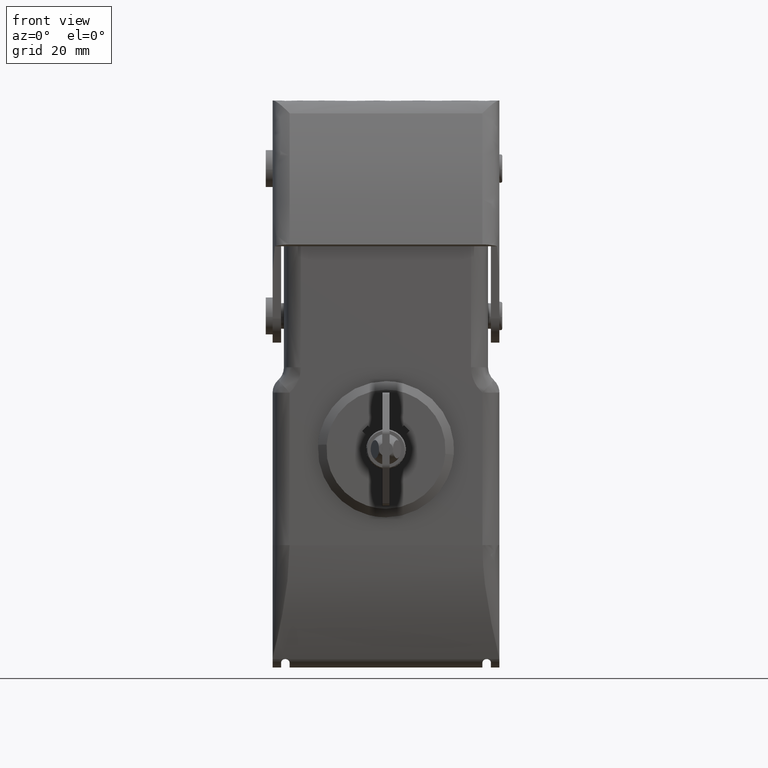
[diagram: clean part render]
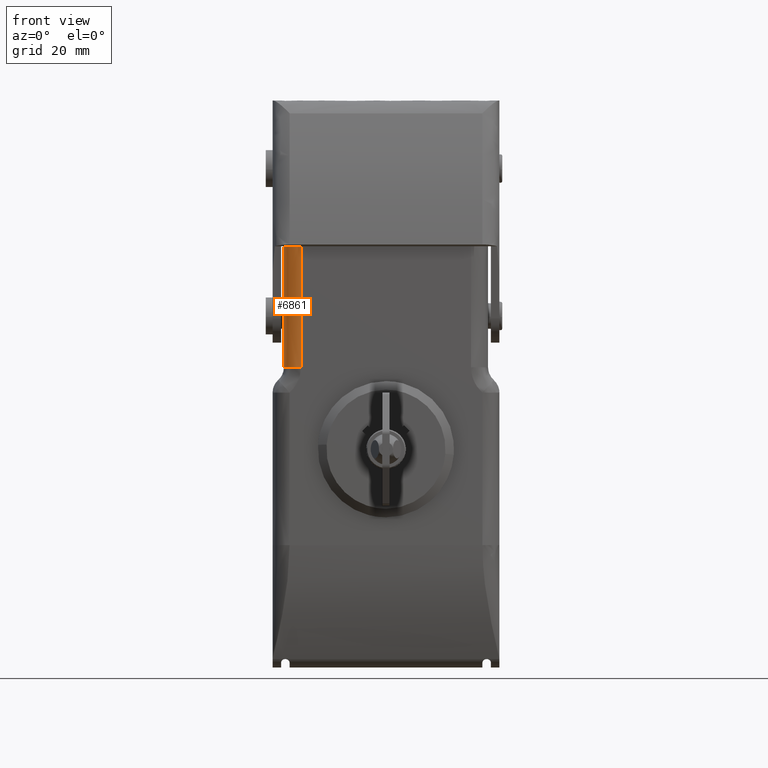
[diagram: same view with one face highlighted and labeled with its STEP entity id]
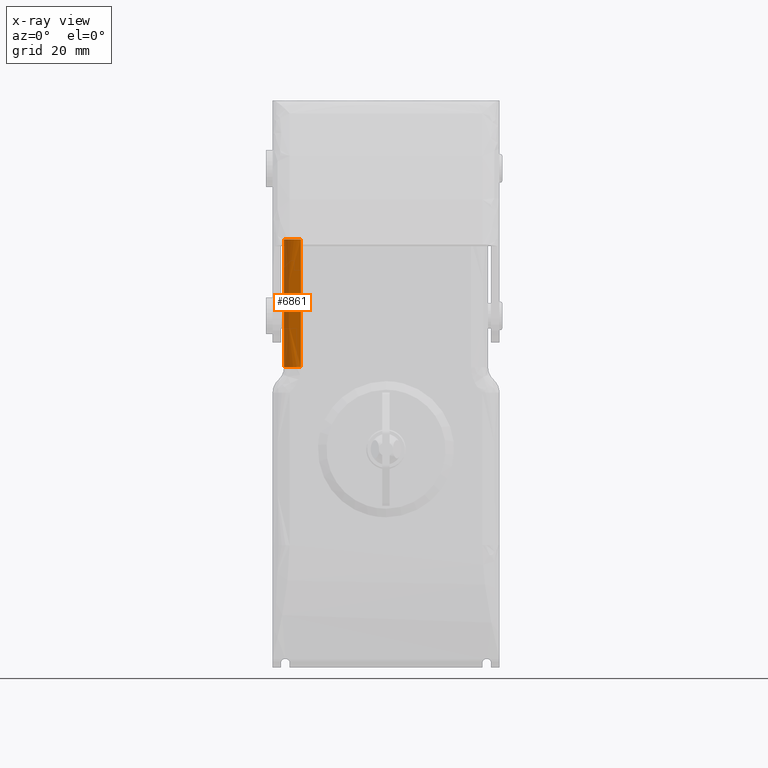
[diagram: x-ray of the same camera — body ghosted, the highlighted face saturated]
A machine part, front view. The second image highlights one B-rep face of the part: STEP entity #6861.
The next image is the same camera in x-ray: the body ghosted, the highlighted face saturated — about 0% of this face is hidden behind the body in this view.
In plain terms, the highlighted face is a freeform B-spline surface patch.
Its self-contained STEP definition (entity closure, byte-faithful):
#6769=CARTESIAN_POINT('',(-15.000000000030351,-19.000000000002998,-8.546488265197050));
#6770=VERTEX_POINT('',#6769);
#6771=CARTESIAN_POINT('',(-18.000000000030351,-16.000000000002998,-8.546488265189790));
#6772=VERTEX_POINT('',#6771);
#6773=CARTESIAN_POINT('',(-15.000000000030351,-19.000000000002998,-8.546488265197050));
#6774=CARTESIAN_POINT('',(-18.000000000030315,-19.000000000002981,-8.546488265189996));
#6775=CARTESIAN_POINT('',(-18.000000000030351,-16.000000000002998,-8.546488265189790));
#6783=(BOUNDED_CURVE()B_SPLINE_CURVE(2,(#6773,#6774,#6775),.UNSPECIFIED.,.F.,.U.)CURVE()GEOMETRIC_REPRESENTATION_ITEM()QUASI_UNIFORM_CURVE()RATIONAL_B_SPLINE_CURVE((1.0,0.707106781186548,1.0))REPRESENTATION_ITEM(''));
#6784=EDGE_CURVE('',#6770,#6772,#6783,.T.);
#6807=CARTESIAN_POINT('',(-18.000000000030351,-16.000000000002998,-8.546488265189790));
#6808=CARTESIAN_POINT('',(-18.000000000030315,-19.000000000002981,-8.546488265189794));
#6809=CARTESIAN_POINT('',(-15.000000000030351,-19.000000000002998,-8.546488265197050));
#6810=CARTESIAN_POINT('',(-18.000000000012150,-16.000000000002998,-1.030992176928784));
#6811=CARTESIAN_POINT('',(-18.000000000012129,-19.000000000002981,-1.030992176928783));
#6812=CARTESIAN_POINT('',(-15.000000000012150,-19.000000000002998,-1.030992176936040));
#6813=CARTESIAN_POINT('',(-17.999999999993950,-16.000000000002998,6.484503911332230));
#6814=CARTESIAN_POINT('',(-17.999999999993971,-19.000000000002981,6.484503911332225));
#6815=CARTESIAN_POINT('',(-14.999999999993960,-19.000000000002998,6.484503911324969));
#6816=CARTESIAN_POINT('',(-17.999999999975799,-16.000000000002998,13.999999999593239));
#6817=CARTESIAN_POINT('',(-17.999999999975781,-19.000000000002981,13.999999999593228));
#6818=CARTESIAN_POINT('',(-14.999999999975801,-19.000000000002998,13.999999999585979));
#6826=(BOUNDED_SURFACE()B_SPLINE_SURFACE(2,3,((#6807,#6810,#6813,#6816),(#6808,#6811,#6814,#6817),(#6809,#6812,#6815,#6818)),.UNSPECIFIED.,.F.,.F.,.U.)B_SPLINE_SURFACE_WITH_KNOTS((3,3),(4,4),(0.0,4.970562748477140),(0.0,22.546488264783029),.UNSPECIFIED.)GEOMETRIC_REPRESENTATION_ITEM()RATIONAL_B_SPLINE_SURFACE(((1.0,1.0,1.0,1.0),(0.707106781186548,0.707106781186548,0.707106781186548,0.707106781186548),(1.0,1.0,1.0,1.0)))REPRESENTATION_ITEM('')SURFACE());
#6827=CARTESIAN_POINT('',(-17.999999999975699,-16.000000000002998,13.999999999585979));
#6828=VERTEX_POINT('',#6827);
#6829=CARTESIAN_POINT('',(-14.999999999975801,-19.000000000002998,13.999999999585979));
#6830=VERTEX_POINT('',#6829);
#6831=CARTESIAN_POINT('',(-17.999999999975699,-16.000000000002998,13.999999999585979));
#6832=CARTESIAN_POINT('',(-17.999999999975799,-19.000000000002995,13.999999999589670));
#6833=CARTESIAN_POINT('',(-14.999999999975801,-19.000000000002998,13.999999999585979));
#6841=(BOUNDED_CURVE()B_SPLINE_CURVE(2,(#6831,#6832,#6833),.UNSPECIFIED.,.F.,.U.)CURVE()GEOMETRIC_REPRESENTATION_ITEM()QUASI_UNIFORM_CURVE()RATIONAL_B_SPLINE_CURVE((1.0,0.707106781186548,1.0))REPRESENTATION_ITEM(''));
#6842=EDGE_CURVE('',#6828,#6830,#6841,.T.);
#6843=ORIENTED_EDGE('',*,*,#6842,.F.);
#6844=CARTESIAN_POINT('',(-18.000000000030351,-16.000000000002998,-8.546488265189790));
#6845=CARTESIAN_POINT('',(-18.000000000012150,-16.000000000002998,-1.030992176928784));
#6846=CARTESIAN_POINT('',(-17.999999999993950,-16.000000000002998,6.484503911332230));
#6847=CARTESIAN_POINT('',(-17.999999999975699,-16.000000000002998,13.999999999585979));
#6848=B_SPLINE_CURVE_WITH_KNOTS('',3,(#6844,#6845,#6846,#6847),.UNSPECIFIED.,.F.,.U.,(4,4),(0.0,0.333333333333333),.UNSPECIFIED.);
#6849=EDGE_CURVE('',#6772,#6828,#6848,.T.);
#6850=ORIENTED_EDGE('',*,*,#6849,.F.);
#6851=ORIENTED_EDGE('',*,*,#6784,.F.);
#6852=CARTESIAN_POINT('',(-14.999999999975801,-19.000000000002998,13.999999999585979));
#6853=CARTESIAN_POINT('',(-14.999999999993960,-19.000000000002998,6.484503911324969));
#6854=CARTESIAN_POINT('',(-15.000000000012150,-19.000000000002998,-1.030992176936040));
#6855=CARTESIAN_POINT('',(-15.000000000030351,-19.000000000002998,-8.546488265197050));
#6856=B_SPLINE_CURVE_WITH_KNOTS('',3,(#6852,#6853,#6854,#6855),.UNSPECIFIED.,.F.,.U.,(4,4),(0.0,0.333333333333333),.UNSPECIFIED.);
#6857=EDGE_CURVE('',#6830,#6770,#6856,.T.);
#6858=ORIENTED_EDGE('',*,*,#6857,.F.);
#6859=EDGE_LOOP('',(#6843,#6850,#6851,#6858));
#6860=FACE_OUTER_BOUND('',#6859,.T.);
#6861=ADVANCED_FACE('',(#6860),#6826,.T.);